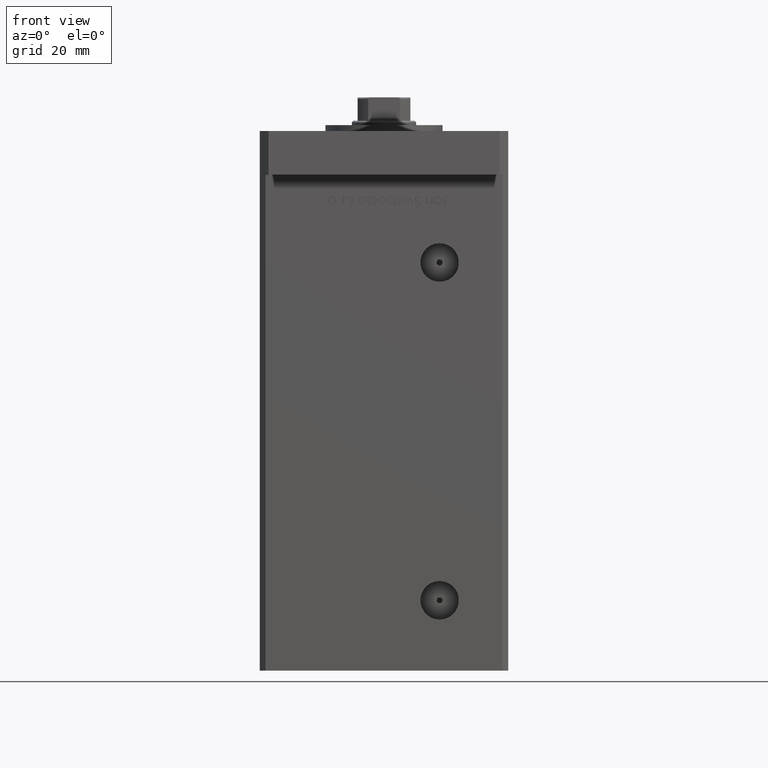
[diagram: clean part render]
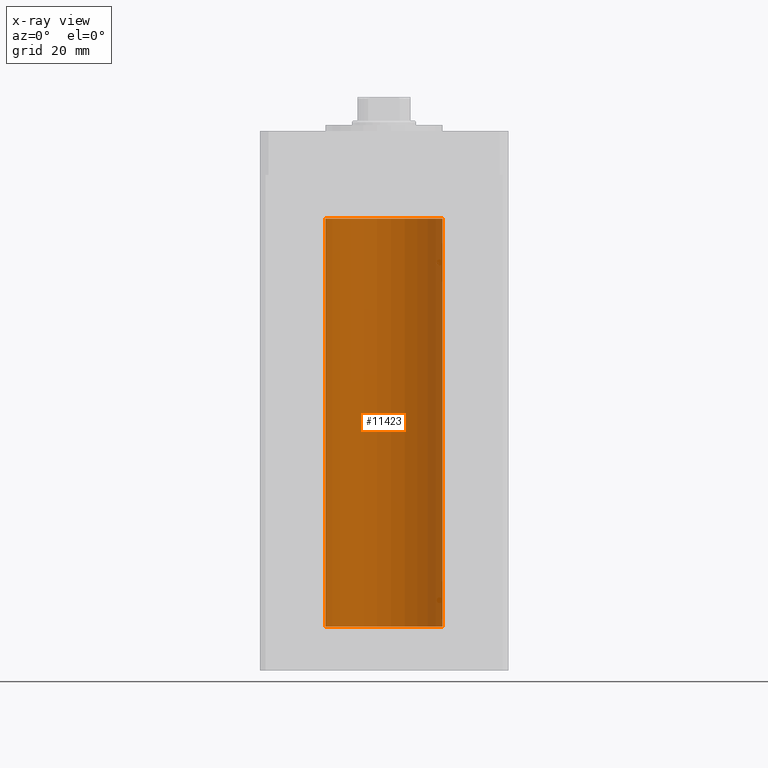
[diagram: x-ray — body ghosted, one internal face saturated and labeled with its STEP entity id]
A machine part, front view, then the same camera in x-ray: the body is ghosted and one INTERNAL B-rep face — a face not visible from any outside direction — is saturated and labeled: STEP entity #11423.
In plain terms, the highlighted cylindrical surface (partial cylindrical patch) has radius 20 mm, axis along (-0, -0, -1).
Its self-contained STEP definition (entity closure, byte-faithful):
#842 = VERTEX_POINT ( 'NONE', #18043 ) ;
#1369 = DIRECTION ( 'NONE',  ( -0.000000000000000000, -0.000000000000000000, -1.000000000000000000 ) ) ;
#2265 = EDGE_CURVE ( 'NONE', #27735, #842, #18725, .T. ) ;
#2926 = FACE_OUTER_BOUND ( 'NONE', #7341, .T. ) ;
#4493 = DIRECTION ( 'NONE',  ( -0.000000000000000000, 0.000000000000000000, 1.000000000000000000 ) ) ;
#5535 = LINE ( 'NONE', #26437, #32036 ) ;
#7341 = EDGE_LOOP ( 'NONE', ( #9377, #40881, #23801, #31062 ) ) ;
#7910 = DIRECTION ( 'NONE',  ( 1.000000000000000000, 0.000000000000000000, 0.000000000000000000 ) ) ;
#8827 = CARTESIAN_POINT ( 'NONE',  ( 0.000000000000000000, 0.000000000000000000, 0.000000000000000000 ) ) ;
#9377 = ORIENTED_EDGE ( 'NONE', *, *, #19809, .F. ) ;
#11330 = DIRECTION ( 'NONE',  ( -1.000000000000000000, 0.000000000000000000, 0.000000000000000000 ) ) ;
#11423 = ADVANCED_FACE ( 'NONE', ( #2926 ), #52574, .F. ) ;
#11716 = CARTESIAN_POINT ( 'NONE',  ( 0.000000000000000000, 0.000000000000000000, 139.5000000000000000 ) ) ;
#13165 = DIRECTION ( 'NONE',  ( 1.000000000000000000, 0.000000000000000000, 0.000000000000000000 ) ) ;
#13945 = DIRECTION ( 'NONE',  ( -0.000000000000000000, -0.000000000000000000, -1.000000000000000000 ) ) ;
#16694 = CIRCLE ( 'NONE', #23643, 20.00000000000000000 ) ;
#18043 = CARTESIAN_POINT ( 'NONE',  ( -20.00000000000000000, 0.000000000000000000, 0.000000000000000000 ) ) ;
#18506 = EDGE_CURVE ( 'NONE', #27112, #842, #35478, .T. ) ;
#18626 = VECTOR ( 'NONE', #1369, 1000.000000000000000 ) ;
#18725 = LINE ( 'NONE', #38523, #18626 ) ;
#19479 = CARTESIAN_POINT ( 'NONE',  ( 0.000000000000000000, 0.000000000000000000, 139.5000000000000000 ) ) ;
#19809 = EDGE_CURVE ( 'NONE', #32083, #27112, #5535, .T. ) ;
#23643 = AXIS2_PLACEMENT_3D ( 'NONE', #11716, #44823, #7910 ) ;
#23801 = ORIENTED_EDGE ( 'NONE', *, *, #2265, .T. ) ;
#24542 = CARTESIAN_POINT ( 'NONE',  ( -20.00000000000000000, 0.000000000000000000, 139.5000000000000000 ) ) ;
#25901 = AXIS2_PLACEMENT_3D ( 'NONE', #8827, #4493, #13165 ) ;
#26437 = CARTESIAN_POINT ( 'NONE',  ( 20.00000000000000000, 2.449293598294706513E-15, 139.5000000000000000 ) ) ;
#27112 = VERTEX_POINT ( 'NONE', #49875 ) ;
#27735 = VERTEX_POINT ( 'NONE', #24542 ) ;
#31062 = ORIENTED_EDGE ( 'NONE', *, *, #18506, .F. ) ;
#32036 = VECTOR ( 'NONE', #13945, 1000.000000000000000 ) ;
#32083 = VERTEX_POINT ( 'NONE', #34005 ) ;
#32274 = EDGE_CURVE ( 'NONE', #32083, #27735, #16694, .T. ) ;
#34005 = CARTESIAN_POINT ( 'NONE',  ( 20.00000000000000000, 2.449293598294706513E-15, 139.5000000000000000 ) ) ;
#35478 = CIRCLE ( 'NONE', #25901, 20.00000000000000000 ) ;
#38523 = CARTESIAN_POINT ( 'NONE',  ( -20.00000000000000000, 0.000000000000000000, 139.5000000000000000 ) ) ;
#40881 = ORIENTED_EDGE ( 'NONE', *, *, #32274, .T. ) ;
#44823 = DIRECTION ( 'NONE',  ( -0.000000000000000000, 0.000000000000000000, 1.000000000000000000 ) ) ;
#47401 = AXIS2_PLACEMENT_3D ( 'NONE', #19479, #48522, #11330 ) ;
#48522 = DIRECTION ( 'NONE',  ( -0.000000000000000000, -0.000000000000000000, -1.000000000000000000 ) ) ;
#49875 = CARTESIAN_POINT ( 'NONE',  ( 20.00000000000000000, 2.449293598294706513E-15, 0.000000000000000000 ) ) ;
#52574 = CYLINDRICAL_SURFACE ( 'NONE', #47401, 20.00000000000000000 ) ;